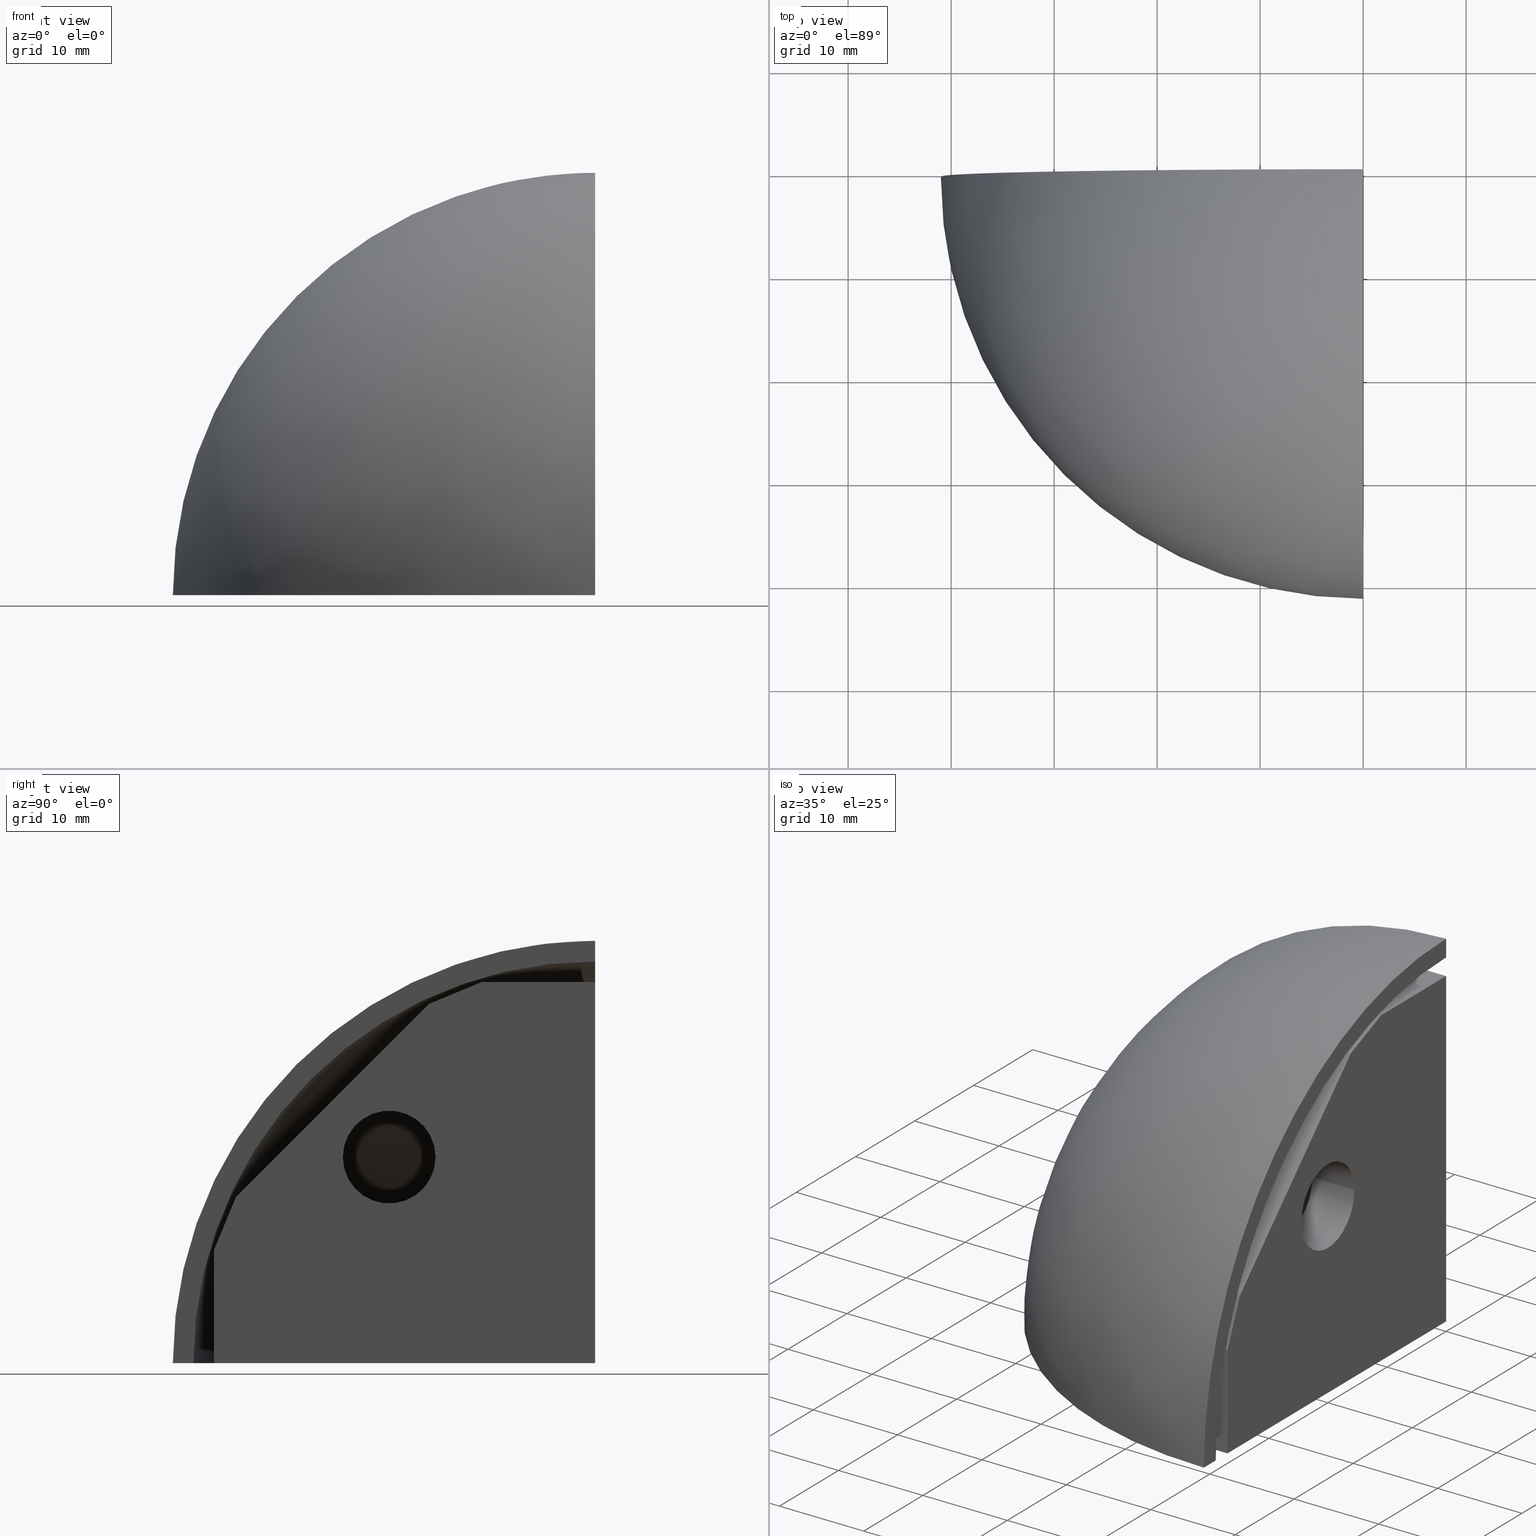
[diagram: canonical four-view strip — front | top / right | iso, engineering-drawing reading convention]
A machine part, canonical four-view strip (front | top / right | iso — engineering-drawing reading convention). The complete STEP part file that produces these views, byte-faithful:
ISO-10303-21;
HEADER;
/****************************************************************
 * Generated by software with PDE/Lib inside                    *
 * PDElib Version v4.4, created Mon 02/23/2004                  *
 * International Technegroup Inc. (www.iti-oh.com)              *
 ****************************************************************/
FILE_DESCRIPTION(('STEP AP203'),'2;1');
FILE_NAME('14.319.00.stp','2011-09-08T18:05:32',(''),(''),'2009.3.110','THINKDESIGN','');
FILE_SCHEMA(('CONFIG_CONTROL_DESIGN'));
ENDSEC;
DATA;
#2=CARTESIAN_POINT('',(-41.0,0.0,0.0));
#3=CARTESIAN_POINT('',(-41.0,-40.999999999999993,0.0));
#4=CARTESIAN_POINT('',(-9.103829E-015,-41.0,3.034610E-015));
#5=CARTESIAN_POINT('',(-41.0,0.0,40.999999999999993));
#6=CARTESIAN_POINT('',(-41.0,-40.999999999999993,40.999999999999993));
#7=CARTESIAN_POINT('',(-1.213844E-014,-41.0,40.999999999999993));
#8=CARTESIAN_POINT('',(-9.103829E-015,0.0,41.0));
#9=CARTESIAN_POINT('',(-9.103829E-015,0.0,41.0));
#10=CARTESIAN_POINT('',(-9.103829E-015,0.0,41.0));
#18=(BOUNDED_SURFACE()B_SPLINE_SURFACE(2,2,((#2,#5,#8),(#3,#6,#9),(#4,#7,#10)),.UNSPECIFIED.,.F.,.F.,.U.)GEOMETRIC_REPRESENTATION_ITEM()QUASI_UNIFORM_SURFACE()RATIONAL_B_SPLINE_SURFACE(((1.0,0.707106781186548,1.0),(0.707106781186548,0.500000000000000,0.707106781186548),(1.0,0.707106781186548,1.0)))REPRESENTATION_ITEM('')SURFACE());
#19=CARTESIAN_POINT('',(-41.0,0.0,0.0));
#20=VERTEX_POINT('',#19);
#21=CARTESIAN_POINT('',(-3.552714E-015,-41.0,3.034610E-015));
#22=VERTEX_POINT('',#21);
#23=CARTESIAN_POINT('',(0.0,0.0,3.034610E-015));
#24=DIRECTION('',(-7.401487E-017,0.0,1.0));
#25=DIRECTION('',(-1.0,0.0,-7.401487E-017));
#26=AXIS2_PLACEMENT_3D('',#23,#24,#25);
#27=CIRCLE('',#26,41.0);
#28=EDGE_CURVE('',#20,#22,#27,.T.);
#29=ORIENTED_EDGE('',*,*,#28,.T.);
#30=CARTESIAN_POINT('',(0.0,0.0,41.0));
#31=VERTEX_POINT('',#30);
#32=CARTESIAN_POINT('',(3.552714E-015,0.0,0.0));
#33=DIRECTION('',(-1.0,6.123234E-017,-7.401487E-017));
#34=DIRECTION('',(-6.123234E-017,-1.0,7.401487E-017));
#35=AXIS2_PLACEMENT_3D('',#32,#33,#34);
#36=CIRCLE('',#35,41.0);
#37=EDGE_CURVE('',#22,#31,#36,.T.);
#38=ORIENTED_EDGE('',*,*,#37,.T.);
#39=CARTESIAN_POINT('',(0.0,0.0,0.0));
#40=DIRECTION('',(0.0,1.0,0.0));
#41=DIRECTION('',(-1.0,0.0,0.0));
#42=AXIS2_PLACEMENT_3D('',#39,#40,#41);
#43=CIRCLE('',#42,41.0);
#44=EDGE_CURVE('',#20,#31,#43,.T.);
#45=ORIENTED_EDGE('',*,*,#44,.F.);
#46=EDGE_LOOP('',(#29,#38,#45));
#47=FACE_OUTER_BOUND('',#46,.T.);
#48=ADVANCED_FACE('',(#47),#18,.T.);
#49=CARTESIAN_POINT('',(-2.388061E-015,0.0,39.0));
#50=CARTESIAN_POINT('',(-2.388061E-015,0.0,39.0));
#51=CARTESIAN_POINT('',(-2.388061E-015,0.0,39.0));
#52=CARTESIAN_POINT('',(-38.999999999999993,0.0,39.0));
#53=CARTESIAN_POINT('',(-38.999999999999993,-38.999999999999986,39.0));
#54=CARTESIAN_POINT('',(-1.154632E-014,-38.999999999999993,39.0));
#55=CARTESIAN_POINT('',(-39.0,0.0,6.271678E-015));
#56=CARTESIAN_POINT('',(-39.0,-38.999999999999993,6.271678E-015));
#57=CARTESIAN_POINT('',(-8.659740E-015,-39.0,9.158258E-015));
#65=(BOUNDED_SURFACE()B_SPLINE_SURFACE(2,2,((#49,#52,#55),(#50,#53,#56),(#51,#54,#57)),.UNSPECIFIED.,.F.,.F.,.U.)GEOMETRIC_REPRESENTATION_ITEM()QUASI_UNIFORM_SURFACE()RATIONAL_B_SPLINE_SURFACE(((1.0,0.707106781186548,1.0),(0.707106781186548,0.500000000000000,0.707106781186548),(1.0,0.707106781186548,1.0)))REPRESENTATION_ITEM('')SURFACE());
#66=CARTESIAN_POINT('',(-3.552714E-015,0.0,39.0));
#67=VERTEX_POINT('',#66);
#68=CARTESIAN_POINT('',(-3.552714E-015,-39.0,2.960595E-015));
#69=VERTEX_POINT('',#68);
#70=CARTESIAN_POINT('',(3.552714E-015,0.0,0.0));
#71=DIRECTION('',(1.0,-6.123234E-017,7.401487E-017));
#72=DIRECTION('',(-6.123234E-017,-1.0,7.401487E-017));
#73=AXIS2_PLACEMENT_3D('',#70,#71,#72);
#74=CIRCLE('',#73,39.0);
#75=EDGE_CURVE('',#67,#69,#74,.T.);
#76=ORIENTED_EDGE('',*,*,#75,.T.);
#77=CARTESIAN_POINT('',(-39.0,0.0,0.0));
#78=VERTEX_POINT('',#77);
#79=CARTESIAN_POINT('',(0.0,0.0,2.960595E-015));
#80=DIRECTION('',(-7.401487E-017,0.0,1.0));
#81=DIRECTION('',(-1.0,0.0,-7.401487E-017));
#82=AXIS2_PLACEMENT_3D('',#79,#80,#81);
#83=CIRCLE('',#82,39.0);
#84=EDGE_CURVE('',#78,#69,#83,.T.);
#85=ORIENTED_EDGE('',*,*,#84,.F.);
#86=CARTESIAN_POINT('',(0.0,0.0,0.0));
#87=DIRECTION('',(0.0,-1.0,0.0));
#88=DIRECTION('',(-1.0,0.0,0.0));
#89=AXIS2_PLACEMENT_3D('',#86,#87,#88);
#90=CIRCLE('',#89,39.0);
#91=EDGE_CURVE('',#67,#78,#90,.T.);
#92=ORIENTED_EDGE('',*,*,#91,.F.);
#93=EDGE_LOOP('',(#76,#85,#92));
#94=FACE_OUTER_BOUND('',#93,.T.);
#95=ADVANCED_FACE('',(#94),#65,.T.);
#96=CARTESIAN_POINT('',(82.0,82.0,9.029814E-015));
#97=DIRECTION('',(0.0,0.0,-1.0));
#98=DIRECTION('',(0.0,-1.0,0.0));
#99=AXIS2_PLACEMENT_3D('',#96,#97,#98);
#100=PLANE('',#99);
#101=ORIENTED_EDGE('',*,*,#84,.T.);
#102=CARTESIAN_POINT('',(-3.430249E-015,-39.0,2.886580E-015));
#103=DIRECTION('',(0.0,-1.0,0.0));
#104=VECTOR('',#103,2.0);
#105=LINE('',#102,#104);
#106=EDGE_CURVE('',#69,#22,#105,.T.);
#107=ORIENTED_EDGE('',*,*,#106,.T.);
#108=ORIENTED_EDGE('',*,*,#28,.F.);
#109=CARTESIAN_POINT('',(-39.0,0.0,0.0));
#110=DIRECTION('',(-1.0,0.0,0.0));
#111=VECTOR('',#110,2.0);
#112=LINE('',#109,#111);
#113=EDGE_CURVE('',#78,#20,#112,.T.);
#114=ORIENTED_EDGE('',*,*,#113,.F.);
#115=EDGE_LOOP('',(#101,#107,#108,#114));
#116=FACE_OUTER_BOUND('',#115,.T.);
#117=ADVANCED_FACE('',(#116),#100,.T.);
#118=CARTESIAN_POINT('',(-45.100000745576331,0.0,45.100000745576331));
#119=DIRECTION('',(0.0,1.0,0.0));
#120=DIRECTION('',(1.0,0.0,0.0));
#121=AXIS2_PLACEMENT_3D('',#118,#119,#120);
#122=PLANE('',#121);
#123=ORIENTED_EDGE('',*,*,#44,.T.);
#124=CARTESIAN_POINT('',(0.0,0.0,41.0));
#125=DIRECTION('',(0.0,0.0,-1.0));
#126=VECTOR('',#125,2.0);
#127=LINE('',#124,#126);
#128=EDGE_CURVE('',#31,#67,#127,.T.);
#129=ORIENTED_EDGE('',*,*,#128,.T.);
#130=ORIENTED_EDGE('',*,*,#91,.T.);
#131=ORIENTED_EDGE('',*,*,#113,.T.);
#132=EDGE_LOOP('',(#123,#129,#130,#131));
#133=FACE_OUTER_BOUND('',#132,.T.);
#134=ADVANCED_FACE('',(#133),#122,.T.);
#135=CARTESIAN_POINT('',(0.0,-45.100000745576338,-4.100000745576341));
#136=DIRECTION('',(-1.0,0.0,0.0));
#137=DIRECTION('',(0.0,0.0,1.0));
#138=AXIS2_PLACEMENT_3D('',#135,#136,#137);
#139=PLANE('',#138);
#140=ORIENTED_EDGE('',*,*,#106,.F.);
#141=ORIENTED_EDGE('',*,*,#75,.F.);
#142=ORIENTED_EDGE('',*,*,#128,.F.);
#143=ORIENTED_EDGE('',*,*,#37,.F.);
#144=EDGE_LOOP('',(#140,#141,#142,#143));
#145=FACE_OUTER_BOUND('',#144,.T.);
#146=ADVANCED_FACE('',(#145),#139,.F.);
#147=CLOSED_SHELL('',(#48,#95,#117,#134,#146));
#148=MANIFOLD_SOLID_BREP('',#147);
#149=CARTESIAN_POINT('',(-20.0,0.0,20.0));
#150=DIRECTION('',(0.0,1.0,0.0));
#151=DIRECTION('',(-1.0,0.0,0.0));
#152=AXIS2_PLACEMENT_3D('',#149,#150,#151);
#153=CYLINDRICAL_SURFACE('',#152,4.499999999999996);
#154=CARTESIAN_POINT('',(-24.499999999999993,0.0,20.0));
#155=VERTEX_POINT('',#154);
#156=CARTESIAN_POINT('',(-24.499999999999993,-5.0,20.0));
#157=VERTEX_POINT('',#156);
#158=CARTESIAN_POINT('',(-24.499999999999993,0.0,20.0));
#159=DIRECTION('',(0.0,-1.0,0.0));
#160=VECTOR('',#159,5.0);
#161=LINE('',#158,#160);
#162=EDGE_CURVE('',#155,#157,#161,.T.);
#163=ORIENTED_EDGE('',*,*,#162,.T.);
#164=CARTESIAN_POINT('',(-15.500000000000004,-5.0,20.0));
#165=VERTEX_POINT('',#164);
#166=CARTESIAN_POINT('',(-20.0,-5.0,20.0));
#167=DIRECTION('',(0.0,1.0,0.0));
#168=DIRECTION('',(-1.0,0.0,0.0));
#169=AXIS2_PLACEMENT_3D('',#166,#167,#168);
#170=CIRCLE('',#169,4.499999999999996);
#171=EDGE_CURVE('',#165,#157,#170,.T.);
#172=ORIENTED_EDGE('',*,*,#171,.F.);
#173=CARTESIAN_POINT('',(-20.0,-5.0,20.0));
#174=DIRECTION('',(0.0,1.0,0.0));
#175=DIRECTION('',(-1.0,0.0,0.0));
#176=AXIS2_PLACEMENT_3D('',#173,#174,#175);
#177=CIRCLE('',#176,4.499999999999996);
#178=EDGE_CURVE('',#157,#165,#177,.T.);
#179=ORIENTED_EDGE('',*,*,#178,.F.);
#180=ORIENTED_EDGE('',*,*,#162,.F.);
#181=CARTESIAN_POINT('',(-15.500000000000004,0.0,20.0));
#182=VERTEX_POINT('',#181);
#183=CARTESIAN_POINT('',(-20.0,0.0,20.0));
#184=DIRECTION('',(0.0,1.0,0.0));
#185=DIRECTION('',(-1.0,0.0,0.0));
#186=AXIS2_PLACEMENT_3D('',#183,#184,#185);
#187=CIRCLE('',#186,4.499999999999996);
#188=EDGE_CURVE('',#155,#182,#187,.T.);
#189=ORIENTED_EDGE('',*,*,#188,.T.);
#190=CARTESIAN_POINT('',(-20.0,0.0,20.0));
#191=DIRECTION('',(0.0,1.0,0.0));
#192=DIRECTION('',(-1.0,0.0,0.0));
#193=AXIS2_PLACEMENT_3D('',#190,#191,#192);
#194=CIRCLE('',#193,4.499999999999996);
#195=EDGE_CURVE('',#182,#155,#194,.T.);
#196=ORIENTED_EDGE('',*,*,#195,.T.);
#197=EDGE_LOOP('',(#163,#172,#179,#180,#189,#196));
#198=FACE_OUTER_BOUND('',#197,.T.);
#199=ADVANCED_FACE('',(#198),#153,.F.);
#200=CARTESIAN_POINT('',(0.0,-20.0,20.0));
#201=DIRECTION('',(1.0,0.0,0.0));
#202=DIRECTION('',(0.0,1.0,0.0));
#203=AXIS2_PLACEMENT_3D('',#200,#201,#202);
#204=CYLINDRICAL_SURFACE('',#203,4.499999999999996);
#205=CARTESIAN_POINT('',(0.0,-15.500000000000004,20.0));
#206=VERTEX_POINT('',#205);
#207=CARTESIAN_POINT('',(-5.0,-15.500000000000004,20.0));
#208=VERTEX_POINT('',#207);
#209=CARTESIAN_POINT('',(0.0,-15.500000000000004,20.0));
#210=DIRECTION('',(-1.0,0.0,0.0));
#211=VECTOR('',#210,5.0);
#212=LINE('',#209,#211);
#213=EDGE_CURVE('',#206,#208,#212,.T.);
#214=ORIENTED_EDGE('',*,*,#213,.T.);
#215=CARTESIAN_POINT('',(-5.0,-24.499999999999996,20.0));
#216=VERTEX_POINT('',#215);
#217=CARTESIAN_POINT('',(-5.0,-20.0,20.0));
#218=DIRECTION('',(1.0,0.0,0.0));
#219=DIRECTION('',(0.0,1.0,0.0));
#220=AXIS2_PLACEMENT_3D('',#217,#218,#219);
#221=CIRCLE('',#220,4.499999999999996);
#222=EDGE_CURVE('',#216,#208,#221,.T.);
#223=ORIENTED_EDGE('',*,*,#222,.F.);
#224=CARTESIAN_POINT('',(-5.0,-20.0,20.0));
#225=DIRECTION('',(1.0,0.0,0.0));
#226=DIRECTION('',(0.0,1.0,0.0));
#227=AXIS2_PLACEMENT_3D('',#224,#225,#226);
#228=CIRCLE('',#227,4.499999999999996);
#229=EDGE_CURVE('',#208,#216,#228,.T.);
#230=ORIENTED_EDGE('',*,*,#229,.F.);
#231=ORIENTED_EDGE('',*,*,#213,.F.);
#232=CARTESIAN_POINT('',(0.0,-24.499999999999996,20.0));
#233=VERTEX_POINT('',#232);
#234=CARTESIAN_POINT('',(0.0,-20.0,20.0));
#235=DIRECTION('',(1.0,0.0,0.0));
#236=DIRECTION('',(0.0,1.0,0.0));
#237=AXIS2_PLACEMENT_3D('',#234,#235,#236);
#238=CIRCLE('',#237,4.499999999999996);
#239=EDGE_CURVE('',#206,#233,#238,.T.);
#240=ORIENTED_EDGE('',*,*,#239,.T.);
#241=CARTESIAN_POINT('',(0.0,-20.0,20.0));
#242=DIRECTION('',(1.0,0.0,0.0));
#243=DIRECTION('',(0.0,1.0,0.0));
#244=AXIS2_PLACEMENT_3D('',#241,#242,#243);
#245=CIRCLE('',#244,4.499999999999996);
#246=EDGE_CURVE('',#233,#206,#245,.T.);
#247=ORIENTED_EDGE('',*,*,#246,.T.);
#248=EDGE_LOOP('',(#214,#223,#230,#231,#240,#247));
#249=FACE_OUTER_BOUND('',#248,.T.);
#250=ADVANCED_FACE('',(#249),#204,.F.);
#251=CARTESIAN_POINT('',(-20.0,-20.0,0.0));
#252=DIRECTION('',(0.0,0.0,-1.0));
#253=DIRECTION('',(1.0,0.0,0.0));
#254=AXIS2_PLACEMENT_3D('',#251,#252,#253);
#255=CYLINDRICAL_SURFACE('',#254,4.499999999999996);
#256=CARTESIAN_POINT('',(-15.500000000000007,-20.0,0.0));
#257=VERTEX_POINT('',#256);
#258=CARTESIAN_POINT('',(-15.500000000000007,-20.0,5.0));
#259=VERTEX_POINT('',#258);
#260=CARTESIAN_POINT('',(-15.500000000000007,-20.0,0.0));
#261=DIRECTION('',(0.0,0.0,1.0));
#262=VECTOR('',#261,5.0);
#263=LINE('',#260,#262);
#264=EDGE_CURVE('',#257,#259,#263,.T.);
#265=ORIENTED_EDGE('',*,*,#264,.T.);
#266=CARTESIAN_POINT('',(-24.499999999999996,-20.0,5.0));
#267=VERTEX_POINT('',#266);
#268=CARTESIAN_POINT('',(-20.0,-20.0,5.0));
#269=DIRECTION('',(0.0,0.0,-1.0));
#270=DIRECTION('',(1.0,0.0,0.0));
#271=AXIS2_PLACEMENT_3D('',#268,#269,#270);
#272=CIRCLE('',#271,4.499999999999996);
#273=EDGE_CURVE('',#267,#259,#272,.T.);
#274=ORIENTED_EDGE('',*,*,#273,.F.);
#275=CARTESIAN_POINT('',(-20.0,-20.0,5.0));
#276=DIRECTION('',(0.0,0.0,-1.0));
#277=DIRECTION('',(1.0,0.0,0.0));
#278=AXIS2_PLACEMENT_3D('',#275,#276,#277);
#279=CIRCLE('',#278,4.499999999999996);
#280=EDGE_CURVE('',#259,#267,#279,.T.);
#281=ORIENTED_EDGE('',*,*,#280,.F.);
#282=ORIENTED_EDGE('',*,*,#264,.F.);
#283=CARTESIAN_POINT('',(-24.499999999999996,-20.0,0.0));
#284=VERTEX_POINT('',#283);
#285=CARTESIAN_POINT('',(-20.0,-20.0,0.0));
#286=DIRECTION('',(0.0,0.0,-1.0));
#287=DIRECTION('',(1.0,0.0,0.0));
#288=AXIS2_PLACEMENT_3D('',#285,#286,#287);
#289=CIRCLE('',#288,4.499999999999996);
#290=EDGE_CURVE('',#257,#284,#289,.T.);
#291=ORIENTED_EDGE('',*,*,#290,.T.);
#292=CARTESIAN_POINT('',(-20.0,-20.0,0.0));
#293=DIRECTION('',(0.0,0.0,-1.0));
#294=DIRECTION('',(1.0,0.0,0.0));
#295=AXIS2_PLACEMENT_3D('',#292,#293,#294);
#296=CIRCLE('',#295,4.499999999999996);
#297=EDGE_CURVE('',#284,#257,#296,.T.);
#298=ORIENTED_EDGE('',*,*,#297,.T.);
#299=EDGE_LOOP('',(#265,#274,#281,#282,#291,#298));
#300=FACE_OUTER_BOUND('',#299,.T.);
#301=ADVANCED_FACE('',(#300),#255,.F.);
#302=CARTESIAN_POINT('',(0.0,-37.0,0.0));
#303=DIRECTION('',(1.0,0.0,0.0));
#304=DIRECTION('',(0.0,1.0,0.0));
#305=AXIS2_PLACEMENT_3D('',#302,#303,#304);
#306=PLANE('',#305);
#307=CARTESIAN_POINT('',(0.0,-37.0,0.0));
#308=VERTEX_POINT('',#307);
#309=CARTESIAN_POINT('',(0.0,0.0,0.0));
#310=VERTEX_POINT('',#309);
#311=CARTESIAN_POINT('',(0.0,-37.0,0.0));
#312=DIRECTION('',(0.0,1.0,0.0));
#313=VECTOR('',#312,37.0);
#314=LINE('',#311,#313);
#315=EDGE_CURVE('',#308,#310,#314,.T.);
#316=ORIENTED_EDGE('',*,*,#315,.T.);
#317=CARTESIAN_POINT('',(0.0,0.0,37.0));
#318=VERTEX_POINT('',#317);
#319=CARTESIAN_POINT('',(0.0,0.0,0.0));
#320=DIRECTION('',(0.0,0.0,1.0));
#321=VECTOR('',#320,37.0);
#322=LINE('',#319,#321);
#323=EDGE_CURVE('',#310,#318,#322,.T.);
#324=ORIENTED_EDGE('',*,*,#323,.T.);
#325=CARTESIAN_POINT('',(0.0,-11.0,37.0));
#326=VERTEX_POINT('',#325);
#327=CARTESIAN_POINT('',(0.0,-11.0,37.0));
#328=DIRECTION('',(0.0,1.0,0.0));
#329=VECTOR('',#328,11.0);
#330=LINE('',#327,#329);
#331=EDGE_CURVE('',#326,#318,#330,.T.);
#332=ORIENTED_EDGE('',*,*,#331,.F.);
#333=CARTESIAN_POINT('',(-3.552714E-015,-16.121320343559642,34.878679656440362));
#334=VERTEX_POINT('',#333);
#335=CARTESIAN_POINT('',(0.0,-16.121320343559642,34.878679656440362));
#336=DIRECTION('',(0.0,0.923879532511287,0.382683432365089));
#337=VECTOR('',#336,5.543277195067718);
#338=LINE('',#335,#337);
#339=EDGE_CURVE('',#334,#326,#338,.T.);
#340=ORIENTED_EDGE('',*,*,#339,.F.);
#341=CARTESIAN_POINT('',(-3.552714E-015,-34.878679656440362,16.121320343559645));
#342=VERTEX_POINT('',#341);
#343=CARTESIAN_POINT('',(0.0,-16.121320343559642,34.878679656440362));
#344=DIRECTION('',(0.0,-0.707106781186547,-0.707106781186548));
#345=VECTOR('',#344,26.526911934581186);
#346=LINE('',#343,#345);
#347=EDGE_CURVE('',#334,#342,#346,.T.);
#348=ORIENTED_EDGE('',*,*,#347,.T.);
#349=CARTESIAN_POINT('',(0.0,-37.0,10.999999999999998));
#350=VERTEX_POINT('',#349);
#351=CARTESIAN_POINT('',(0.0,-34.878679656440355,16.121320343559642));
#352=DIRECTION('',(0.0,-0.382683432365090,-0.923879532511287));
#353=VECTOR('',#352,5.543277195067723);
#354=LINE('',#351,#353);
#355=EDGE_CURVE('',#342,#350,#354,.T.);
#356=ORIENTED_EDGE('',*,*,#355,.T.);
#357=CARTESIAN_POINT('',(0.0,-37.0,0.0));
#358=DIRECTION('',(0.0,0.0,1.0));
#359=VECTOR('',#358,10.999999999999998);
#360=LINE('',#357,#359);
#361=EDGE_CURVE('',#308,#350,#360,.T.);
#362=ORIENTED_EDGE('',*,*,#361,.F.);
#363=EDGE_LOOP('',(#316,#324,#332,#340,#348,#356,#362));
#364=FACE_OUTER_BOUND('',#363,.T.);
#365=ORIENTED_EDGE('',*,*,#246,.F.);
#366=ORIENTED_EDGE('',*,*,#239,.F.);
#367=EDGE_LOOP('',(#365,#366));
#368=FACE_BOUND('',#367,.T.);
#369=ADVANCED_FACE('',(#364,#368),#306,.T.);
#370=CARTESIAN_POINT('',(-5.0,-16.121320343559645,34.878679656440355));
#371=CARTESIAN_POINT('',(-5.0,-14.414213562373096,35.585786437626901));
#372=CARTESIAN_POINT('',(-5.0,-12.707106781186550,36.292893218813454));
#373=CARTESIAN_POINT('',(-5.0,-11.0,37.0));
#374=CARTESIAN_POINT('',(-3.333333333333334,-16.121320343559645,34.878679656440355));
#375=CARTESIAN_POINT('',(-3.333333333333334,-14.414213562373096,35.585786437626901));
#376=CARTESIAN_POINT('',(-3.333333333333334,-12.707106781186550,36.292893218813454));
#377=CARTESIAN_POINT('',(-3.333333333333334,-11.0,37.0));
#378=CARTESIAN_POINT('',(-1.666666666666667,-16.121320343559645,34.878679656440362));
#379=CARTESIAN_POINT('',(-1.666666666666667,-14.414213562373098,35.585786437626908));
#380=CARTESIAN_POINT('',(-1.666666666666667,-12.707106781186548,36.292893218813454));
#381=CARTESIAN_POINT('',(-1.666666666666667,-11.0,37.0));
#382=CARTESIAN_POINT('',(0.0,-16.121320343559645,34.878679656440362));
#383=CARTESIAN_POINT('',(0.0,-14.414213562373098,35.585786437626908));
#384=CARTESIAN_POINT('',(0.0,-12.707106781186548,36.292893218813454));
#385=CARTESIAN_POINT('',(0.0,-11.0,37.0));
#386=B_SPLINE_SURFACE_WITH_KNOTS('',3,3,((#370,#374,#378,#382),(#371,#375,#379,#383),(#372,#376,#380,#384),(#373,#377,#381,#385)),.UNSPECIFIED.,.F.,.F.,.U.,(4,4),(4,4),(0.0,5.543277195067724),(0.0,5.0),.UNSPECIFIED.);
#387=CARTESIAN_POINT('',(-5.0,-16.121320343559645,34.878679656440355));
#388=VERTEX_POINT('',#387);
#389=CARTESIAN_POINT('',(-5.0,-16.121320343559645,34.878679656440355));
#390=CARTESIAN_POINT('',(-4.485416666666666,-16.121320343559645,34.878679656440355));
#391=CARTESIAN_POINT('',(-2.818750000000009,-16.121320343559645,34.878679656440362));
#392=CARTESIAN_POINT('',(-1.152083333333334,-16.121320343559645,34.878679656440355));
#393=CARTESIAN_POINT('',(0.0,-16.121320343559645,34.878679656440355));
#394=B_SPLINE_CURVE_WITH_KNOTS('',3,(#389,#390,#391,#392,#393),.UNSPECIFIED.,.F.,.U.,(4,1,4),(0.0,1.543750000000003,5.0),.UNSPECIFIED.);
#395=EDGE_CURVE('',#388,#334,#394,.T.);
#396=ORIENTED_EDGE('',*,*,#395,.T.);
#397=ORIENTED_EDGE('',*,*,#339,.T.);
#398=CARTESIAN_POINT('',(-5.0,-11.0,37.0));
#399=VERTEX_POINT('',#398);
#400=CARTESIAN_POINT('',(-5.0,-11.0,37.0));
#401=DIRECTION('',(1.0,0.0,0.0));
#402=VECTOR('',#401,5.0);
#403=LINE('',#400,#402);
#404=EDGE_CURVE('',#399,#326,#403,.T.);
#405=ORIENTED_EDGE('',*,*,#404,.F.);
#406=CARTESIAN_POINT('',(-5.0,-16.121320343559642,34.878679656440355));
#407=DIRECTION('',(0.0,0.923879532511287,0.382683432365090));
#408=VECTOR('',#407,5.543277195067721);
#409=LINE('',#406,#408);
#410=EDGE_CURVE('',#388,#399,#409,.T.);
#411=ORIENTED_EDGE('',*,*,#410,.F.);
#412=EDGE_LOOP('',(#396,#397,#405,#411));
#413=FACE_OUTER_BOUND('',#412,.T.);
#414=ADVANCED_FACE('',(#413),#386,.F.);
#415=CARTESIAN_POINT('',(-5.0,-37.0,37.0));
#416=DIRECTION('',(-1.0,0.0,0.0));
#417=DIRECTION('',(0.0,1.0,0.0));
#418=AXIS2_PLACEMENT_3D('',#415,#416,#417);
#419=PLANE('',#418);
#420=CARTESIAN_POINT('',(-5.0,-5.0,37.0));
#421=VERTEX_POINT('',#420);
#422=CARTESIAN_POINT('',(-5.0,-5.0,5.0));
#423=VERTEX_POINT('',#422);
#424=CARTESIAN_POINT('',(-5.0,-5.0,37.0));
#425=DIRECTION('',(0.0,0.0,-1.0));
#426=VECTOR('',#425,32.0);
#427=LINE('',#424,#426);
#428=EDGE_CURVE('',#421,#423,#427,.T.);
#429=ORIENTED_EDGE('',*,*,#428,.T.);
#430=CARTESIAN_POINT('',(-5.0,-37.0,5.0));
#431=VERTEX_POINT('',#430);
#432=CARTESIAN_POINT('',(-5.0,-37.0,5.0));
#433=DIRECTION('',(0.0,1.0,0.0));
#434=VECTOR('',#433,32.0);
#435=LINE('',#432,#434);
#436=EDGE_CURVE('',#431,#423,#435,.T.);
#437=ORIENTED_EDGE('',*,*,#436,.F.);
#438=CARTESIAN_POINT('',(-5.0,-37.0,11.0));
#439=VERTEX_POINT('',#438);
#440=CARTESIAN_POINT('',(-5.0,-37.0,11.0));
#441=DIRECTION('',(0.0,0.0,-1.0));
#442=VECTOR('',#441,6.0);
#443=LINE('',#440,#442);
#444=EDGE_CURVE('',#439,#431,#443,.T.);
#445=ORIENTED_EDGE('',*,*,#444,.F.);
#446=CARTESIAN_POINT('',(-5.0,-34.878679656440355,16.121320343559642));
#447=VERTEX_POINT('',#446);
#448=CARTESIAN_POINT('',(-5.0,-34.878679656440355,16.121320343559642));
#449=DIRECTION('',(0.0,-0.382683432365090,-0.923879532511287));
#450=VECTOR('',#449,5.543277195067721);
#451=LINE('',#448,#450);
#452=EDGE_CURVE('',#447,#439,#451,.T.);
#453=ORIENTED_EDGE('',*,*,#452,.F.);
#454=CARTESIAN_POINT('',(-5.0,-16.121320343559645,34.878679656440355));
#455=DIRECTION('',(0.0,-0.707106781186547,-0.707106781186547));
#456=VECTOR('',#455,26.526911934581189);
#457=LINE('',#454,#456);
#458=EDGE_CURVE('',#388,#447,#457,.T.);
#459=ORIENTED_EDGE('',*,*,#458,.F.);
#460=ORIENTED_EDGE('',*,*,#410,.T.);
#461=CARTESIAN_POINT('',(-5.0,-11.0,37.0));
#462=DIRECTION('',(0.0,1.0,0.0));
#463=VECTOR('',#462,6.0);
#464=LINE('',#461,#463);
#465=EDGE_CURVE('',#399,#421,#464,.T.);
#466=ORIENTED_EDGE('',*,*,#465,.T.);
#467=EDGE_LOOP('',(#429,#437,#445,#453,#459,#460,#466));
#468=FACE_OUTER_BOUND('',#467,.T.);
#469=ORIENTED_EDGE('',*,*,#229,.T.);
#470=ORIENTED_EDGE('',*,*,#222,.T.);
#471=EDGE_LOOP('',(#469,#470));
#472=FACE_BOUND('',#471,.T.);
#473=ADVANCED_FACE('',(#468,#472),#419,.T.);
#474=CARTESIAN_POINT('',(-5.0,-34.878679656440355,16.121320343559642));
#475=CARTESIAN_POINT('',(-5.0,-35.585786437626901,14.414213562373094));
#476=CARTESIAN_POINT('',(-5.0,-36.292893218813454,12.707106781186548));
#477=CARTESIAN_POINT('',(-5.0,-37.0,11.0));
#478=CARTESIAN_POINT('',(-3.333333333333334,-34.878679656440355,16.121320343559642));
#479=CARTESIAN_POINT('',(-3.333333333333334,-35.585786437626901,14.414213562373094));
#480=CARTESIAN_POINT('',(-3.333333333333334,-36.292893218813454,12.707106781186548));
#481=CARTESIAN_POINT('',(-3.333333333333334,-37.0,11.0));
#482=CARTESIAN_POINT('',(-1.666666666666667,-34.878679656440362,16.121320343559645));
#483=CARTESIAN_POINT('',(-1.666666666666667,-35.585786437626908,14.414213562373096));
#484=CARTESIAN_POINT('',(-1.666666666666667,-36.292893218813454,12.707106781186546));
#485=CARTESIAN_POINT('',(-1.666666666666667,-37.0,10.999999999999998));
#486=CARTESIAN_POINT('',(0.0,-34.878679656440362,16.121320343559645));
#487=CARTESIAN_POINT('',(0.0,-35.585786437626908,14.414213562373096));
#488=CARTESIAN_POINT('',(0.0,-36.292893218813454,12.707106781186546));
#489=CARTESIAN_POINT('',(0.0,-37.0,10.999999999999998));
#490=B_SPLINE_SURFACE_WITH_KNOTS('',3,3,((#474,#478,#482,#486),(#475,#479,#483,#487),(#476,#480,#484,#488),(#477,#481,#485,#489)),.UNSPECIFIED.,.F.,.F.,.U.,(4,4),(4,4),(0.0,5.543277195067722),(0.0,5.0),.UNSPECIFIED.);
#491=ORIENTED_EDGE('',*,*,#452,.T.);
#492=CARTESIAN_POINT('',(-5.0,-37.0,11.0));
#493=DIRECTION('',(1.0,0.0,0.0));
#494=VECTOR('',#493,5.0);
#495=LINE('',#492,#494);
#496=EDGE_CURVE('',#439,#350,#495,.T.);
#497=ORIENTED_EDGE('',*,*,#496,.T.);
#498=ORIENTED_EDGE('',*,*,#355,.F.);
#499=CARTESIAN_POINT('',(-5.0,-34.878679656440355,16.121320343559642));
#500=CARTESIAN_POINT('',(-4.485416666666666,-34.878679656440355,16.121320343559642));
#501=CARTESIAN_POINT('',(-2.818750000000009,-34.878679656440362,16.121320343559645));
#502=CARTESIAN_POINT('',(-1.152083333333334,-34.878679656440355,16.121320343559642));
#503=CARTESIAN_POINT('',(0.0,-34.878679656440355,16.121320343559642));
#504=B_SPLINE_CURVE_WITH_KNOTS('',3,(#499,#500,#501,#502,#503),.UNSPECIFIED.,.F.,.U.,(4,1,4),(0.0,1.543750000000003,5.0),.UNSPECIFIED.);
#505=EDGE_CURVE('',#447,#342,#504,.T.);
#506=ORIENTED_EDGE('',*,*,#505,.F.);
#507=EDGE_LOOP('',(#491,#497,#498,#506));
#508=FACE_OUTER_BOUND('',#507,.T.);
#509=ADVANCED_FACE('',(#508),#490,.T.);
#510=CARTESIAN_POINT('',(-40.200000745516391,-40.200000745516377,5.0));
#511=DIRECTION('',(0.0,0.0,1.0));
#512=DIRECTION('',(1.0,0.0,0.0));
#513=AXIS2_PLACEMENT_3D('',#510,#511,#512);
#514=PLANE('',#513);
#515=ORIENTED_EDGE('',*,*,#436,.T.);
#516=CARTESIAN_POINT('',(-37.000000000000007,-5.0,5.0));
#517=VERTEX_POINT('',#516);
#518=CARTESIAN_POINT('',(-5.0,-5.0,5.0));
#519=DIRECTION('',(-1.0,0.0,0.0));
#520=VECTOR('',#519,32.000000000000007);
#521=LINE('',#518,#520);
#522=EDGE_CURVE('',#423,#517,#521,.T.);
#523=ORIENTED_EDGE('',*,*,#522,.T.);
#524=CARTESIAN_POINT('',(-37.000000000000007,-11.000000000000002,5.000000000000004));
#525=VERTEX_POINT('',#524);
#526=CARTESIAN_POINT('',(-37.000000000000007,-5.0,5.0));
#527=DIRECTION('',(0.0,-1.0,0.0));
#528=VECTOR('',#527,6.000000000000002);
#529=LINE('',#526,#528);
#530=EDGE_CURVE('',#517,#525,#529,.T.);
#531=ORIENTED_EDGE('',*,*,#530,.T.);
#532=CARTESIAN_POINT('',(-34.878679656440355,-16.121320343559645,4.999999999999998));
#533=VERTEX_POINT('',#532);
#534=CARTESIAN_POINT('',(-34.878679656440362,-16.121320343559649,5.0));
#535=DIRECTION('',(-0.382683432365090,0.923879532511287,0.0));
#536=VECTOR('',#535,5.543277195067724);
#537=LINE('',#534,#536);
#538=EDGE_CURVE('',#533,#525,#537,.T.);
#539=ORIENTED_EDGE('',*,*,#538,.F.);
#540=CARTESIAN_POINT('',(-16.121320343559638,-34.878679656440355,4.999999999999998));
#541=VERTEX_POINT('',#540);
#542=CARTESIAN_POINT('',(-34.878679656440362,-16.121320343559649,5.0));
#543=DIRECTION('',(0.707106781186548,-0.707106781186547,0.0));
#544=VECTOR('',#543,26.526911934581182);
#545=LINE('',#542,#544);
#546=EDGE_CURVE('',#533,#541,#545,.T.);
#547=ORIENTED_EDGE('',*,*,#546,.T.);
#548=CARTESIAN_POINT('',(-11.0,-37.0,5.0));
#549=VERTEX_POINT('',#548);
#550=CARTESIAN_POINT('',(-16.121320343559638,-34.878679656440362,5.0));
#551=DIRECTION('',(0.923879532511287,-0.382683432365089,0.0));
#552=VECTOR('',#551,5.543277195067715);
#553=LINE('',#550,#552);
#554=EDGE_CURVE('',#541,#549,#553,.T.);
#555=ORIENTED_EDGE('',*,*,#554,.T.);
#556=CARTESIAN_POINT('',(-11.0,-37.0,5.0));
#557=DIRECTION('',(1.0,0.0,0.0));
#558=VECTOR('',#557,6.0);
#559=LINE('',#556,#558);
#560=EDGE_CURVE('',#549,#431,#559,.T.);
#561=ORIENTED_EDGE('',*,*,#560,.T.);
#562=EDGE_LOOP('',(#515,#523,#531,#539,#547,#555,#561));
#563=FACE_OUTER_BOUND('',#562,.T.);
#564=ORIENTED_EDGE('',*,*,#280,.T.);
#565=ORIENTED_EDGE('',*,*,#273,.T.);
#566=EDGE_LOOP('',(#564,#565));
#567=FACE_BOUND('',#566,.T.);
#568=ADVANCED_FACE('',(#563,#567),#514,.T.);
#569=CARTESIAN_POINT('',(-16.121320343559638,-34.878679656440355,-3.356221E-016));
#570=CARTESIAN_POINT('',(-14.414213562373092,-35.585786437626901,-2.237481E-016));
#571=CARTESIAN_POINT('',(-12.707106781186546,-36.292893218813454,-1.118740E-016));
#572=CARTESIAN_POINT('',(-11.0,-37.0,0.0));
#573=CARTESIAN_POINT('',(-16.121320343559638,-34.878679656440355,1.666666666666666));
#574=CARTESIAN_POINT('',(-14.414213562373092,-35.585786437626901,1.666666666666666));
#575=CARTESIAN_POINT('',(-12.707106781186546,-36.292893218813454,1.666666666666666));
#576=CARTESIAN_POINT('',(-11.0,-37.0,1.666666666666667));
#577=CARTESIAN_POINT('',(-16.121320343559642,-34.878679656440355,3.333333333333332));
#578=CARTESIAN_POINT('',(-14.414213562373094,-35.585786437626901,3.333333333333332));
#579=CARTESIAN_POINT('',(-12.707106781186548,-36.292893218813454,3.333333333333333));
#580=CARTESIAN_POINT('',(-11.0,-37.0,3.333333333333333));
#581=CARTESIAN_POINT('',(-16.121320343559642,-34.878679656440355,4.999999999999998));
#582=CARTESIAN_POINT('',(-14.414213562373094,-35.585786437626901,4.999999999999999));
#583=CARTESIAN_POINT('',(-12.707106781186548,-36.292893218813454,4.999999999999999));
#584=CARTESIAN_POINT('',(-11.0,-37.0,5.0));
#585=B_SPLINE_SURFACE_WITH_KNOTS('',3,3,((#569,#573,#577,#581),(#570,#574,#578,#582),(#571,#575,#579,#583),(#572,#576,#580,#584)),.UNSPECIFIED.,.F.,.F.,.U.,(4,4),(4,4),(0.0,5.543277195067719),(0.0,4.999999999999999),.UNSPECIFIED.);
#586=CARTESIAN_POINT('',(-16.121320343559638,-34.878679656440355,-3.356221E-016));
#587=VERTEX_POINT('',#586);
#588=CARTESIAN_POINT('',(-11.0,-37.0,0.0));
#589=VERTEX_POINT('',#588);
#590=CARTESIAN_POINT('',(-16.121320343559638,-34.878679656440355,0.0));
#591=DIRECTION('',(0.923879532511287,-0.382683432365091,0.0));
#592=VECTOR('',#591,5.543277195067717);
#593=LINE('',#590,#592);
#594=EDGE_CURVE('',#587,#589,#593,.T.);
#595=ORIENTED_EDGE('',*,*,#594,.T.);
#596=CARTESIAN_POINT('',(-11.0,-37.0,0.0));
#597=DIRECTION('',(0.0,0.0,1.0));
#598=VECTOR('',#597,5.0);
#599=LINE('',#596,#598);
#600=EDGE_CURVE('',#589,#549,#599,.T.);
#601=ORIENTED_EDGE('',*,*,#600,.T.);
#602=ORIENTED_EDGE('',*,*,#554,.F.);
#603=CARTESIAN_POINT('',(-16.121320343559638,-34.878679656440355,-3.356221E-016));
#604=CARTESIAN_POINT('',(-16.121320343559638,-34.878679656440355,0.514583333333332));
#605=CARTESIAN_POINT('',(-16.121320343559645,-34.878679656440362,2.181250000000007));
#606=CARTESIAN_POINT('',(-16.121320343559645,-34.878679656440362,3.847916666666665));
#607=CARTESIAN_POINT('',(-16.121320343559645,-34.878679656440362,4.999999999999999));
#608=B_SPLINE_CURVE_WITH_KNOTS('',3,(#603,#604,#605,#606,#607),.UNSPECIFIED.,.F.,.U.,(4,1,4),(0.0,1.543749999999997,5.000000000000001),.UNSPECIFIED.);
#609=EDGE_CURVE('',#587,#541,#608,.T.);
#610=ORIENTED_EDGE('',*,*,#609,.F.);
#611=EDGE_LOOP('',(#595,#601,#602,#610));
#612=FACE_OUTER_BOUND('',#611,.T.);
#613=ADVANCED_FACE('',(#612),#585,.T.);
#614=CARTESIAN_POINT('',(-40.700000745611902,-40.700000675221041,0.0));
#615=DIRECTION('',(0.0,0.0,1.0));
#616=DIRECTION('',(1.0,0.0,0.0));
#617=AXIS2_PLACEMENT_3D('',#614,#615,#616);
#618=PLANE('',#617);
#619=CARTESIAN_POINT('',(-11.0,-37.0,0.0));
#620=DIRECTION('',(1.0,0.0,0.0));
#621=VECTOR('',#620,11.0);
#622=LINE('',#619,#621);
#623=EDGE_CURVE('',#589,#308,#622,.T.);
#624=ORIENTED_EDGE('',*,*,#623,.F.);
#625=ORIENTED_EDGE('',*,*,#594,.F.);
#626=CARTESIAN_POINT('',(-34.878679656440369,-16.121320343559638,-3.303295E-015));
#627=VERTEX_POINT('',#626);
#628=CARTESIAN_POINT('',(-34.878679656440369,-16.121320343559638,0.0));
#629=DIRECTION('',(0.707106781186548,-0.707106781186547,0.0));
#630=VECTOR('',#629,26.526911934581197);
#631=LINE('',#628,#630);
#632=EDGE_CURVE('',#627,#587,#631,.T.);
#633=ORIENTED_EDGE('',*,*,#632,.F.);
#634=CARTESIAN_POINT('',(-37.000000000000007,-10.999999999999998,0.0));
#635=VERTEX_POINT('',#634);
#636=CARTESIAN_POINT('',(-34.878679656440369,-16.121320343559638,0.0));
#637=DIRECTION('',(-0.382683432365089,0.923879532511287,0.0));
#638=VECTOR('',#637,5.543277195067715);
#639=LINE('',#636,#638);
#640=EDGE_CURVE('',#627,#635,#639,.T.);
#641=ORIENTED_EDGE('',*,*,#640,.T.);
#642=CARTESIAN_POINT('',(-37.000000000000007,0.0,0.0));
#643=VERTEX_POINT('',#642);
#644=CARTESIAN_POINT('',(-37.000000000000007,0.0,0.0));
#645=DIRECTION('',(0.0,-1.0,0.0));
#646=VECTOR('',#645,10.999999999999998);
#647=LINE('',#644,#646);
#648=EDGE_CURVE('',#643,#635,#647,.T.);
#649=ORIENTED_EDGE('',*,*,#648,.F.);
#650=CARTESIAN_POINT('',(0.0,0.0,0.0));
#651=DIRECTION('',(-1.0,0.0,0.0));
#652=VECTOR('',#651,37.000000000000007);
#653=LINE('',#650,#652);
#654=EDGE_CURVE('',#310,#643,#653,.T.);
#655=ORIENTED_EDGE('',*,*,#654,.F.);
#656=ORIENTED_EDGE('',*,*,#315,.F.);
#657=EDGE_LOOP('',(#624,#625,#633,#641,#649,#655,#656));
#658=FACE_OUTER_BOUND('',#657,.T.);
#659=ORIENTED_EDGE('',*,*,#297,.F.);
#660=ORIENTED_EDGE('',*,*,#290,.F.);
#661=EDGE_LOOP('',(#659,#660));
#662=FACE_BOUND('',#661,.T.);
#663=ADVANCED_FACE('',(#658,#662),#618,.F.);
#664=CARTESIAN_POINT('',(-34.878679656440369,-16.121320343559638,-3.303295E-015));
#665=CARTESIAN_POINT('',(-35.585786437626915,-14.414213562373092,-2.202197E-015));
#666=CARTESIAN_POINT('',(-36.292893218813461,-12.707106781186544,-1.101098E-015));
#667=CARTESIAN_POINT('',(-37.000000000000007,-10.999999999999998,0.0));
#668=CARTESIAN_POINT('',(-34.878679656440362,-16.121320343559642,1.666666666666664));
#669=CARTESIAN_POINT('',(-35.585786437626915,-14.414213562373094,1.666666666666665));
#670=CARTESIAN_POINT('',(-36.292893218813461,-12.707106781186546,1.666666666666666));
#671=CARTESIAN_POINT('',(-37.000000000000007,-11.0,1.666666666666668));
#672=CARTESIAN_POINT('',(-34.878679656440362,-16.121320343559642,3.333333333333331));
#673=CARTESIAN_POINT('',(-35.585786437626908,-14.414213562373096,3.333333333333332));
#674=CARTESIAN_POINT('',(-36.292893218813454,-12.707106781186548,3.333333333333334));
#675=CARTESIAN_POINT('',(-37.000000000000007,-11.0,3.333333333333336));
#676=CARTESIAN_POINT('',(-34.878679656440355,-16.121320343559645,4.999999999999998));
#677=CARTESIAN_POINT('',(-35.585786437626908,-14.414213562373098,5.0));
#678=CARTESIAN_POINT('',(-36.292893218813454,-12.707106781186550,5.000000000000002));
#679=CARTESIAN_POINT('',(-37.000000000000007,-11.000000000000002,5.000000000000004));
#680=B_SPLINE_SURFACE_WITH_KNOTS('',3,3,((#664,#668,#672,#676),(#665,#669,#673,#677),(#666,#670,#674,#678),(#667,#671,#675,#679)),.UNSPECIFIED.,.F.,.F.,.U.,(4,4),(4,4),(0.0,5.543277195067721),(0.0,5.000000000000003),.UNSPECIFIED.);
#681=CARTESIAN_POINT('',(-34.878679656440369,-16.121320343559638,-3.303295E-015));
#682=CARTESIAN_POINT('',(-34.878679656440369,-16.121320343559638,0.514583333333330));
#683=CARTESIAN_POINT('',(-34.878679656440404,-16.121320343559638,2.181250000000000));
#684=CARTESIAN_POINT('',(-34.878679656440362,-16.121320343559645,3.847916666666666));
#685=CARTESIAN_POINT('',(-34.878679656440362,-16.121320343559645,4.999999999999999));
#686=B_SPLINE_CURVE_WITH_KNOTS('',3,(#681,#682,#683,#684,#685),.UNSPECIFIED.,.F.,.U.,(4,1,4),(0.0,1.543750000000001,5.000000000000003),.UNSPECIFIED.);
#687=EDGE_CURVE('',#627,#533,#686,.T.);
#688=ORIENTED_EDGE('',*,*,#687,.T.);
#689=ORIENTED_EDGE('',*,*,#538,.T.);
#690=CARTESIAN_POINT('',(-37.000000000000007,-10.999999999999998,0.0));
#691=DIRECTION('',(0.0,0.0,1.0));
#692=VECTOR('',#691,5.000000000000004);
#693=LINE('',#690,#692);
#694=EDGE_CURVE('',#635,#525,#693,.T.);
#695=ORIENTED_EDGE('',*,*,#694,.F.);
#696=ORIENTED_EDGE('',*,*,#640,.F.);
#697=EDGE_LOOP('',(#688,#689,#695,#696));
#698=FACE_OUTER_BOUND('',#697,.T.);
#699=ADVANCED_FACE('',(#698),#680,.F.);
#700=CARTESIAN_POINT('',(-5.0,-5.0,37.0));
#701=DIRECTION('',(0.0,-1.0,0.0));
#702=DIRECTION('',(-1.0,0.0,0.0));
#703=AXIS2_PLACEMENT_3D('',#700,#701,#702);
#704=PLANE('',#703);
#705=ORIENTED_EDGE('',*,*,#522,.F.);
#706=ORIENTED_EDGE('',*,*,#428,.F.);
#707=CARTESIAN_POINT('',(-11.000000000000007,-5.0,37.0));
#708=VERTEX_POINT('',#707);
#709=CARTESIAN_POINT('',(-5.0,-5.0,37.0));
#710=DIRECTION('',(-1.0,0.0,0.0));
#711=VECTOR('',#710,6.000000000000007);
#712=LINE('',#709,#711);
#713=EDGE_CURVE('',#421,#708,#712,.T.);
#714=ORIENTED_EDGE('',*,*,#713,.T.);
#715=CARTESIAN_POINT('',(-16.121320343559653,-5.0,34.878679656440355));
#716=VERTEX_POINT('',#715);
#717=CARTESIAN_POINT('',(-11.000000000000007,-5.0,37.0));
#718=DIRECTION('',(-0.923879532511287,0.0,-0.382683432365090));
#719=VECTOR('',#718,5.543277195067724);
#720=LINE('',#717,#719);
#721=EDGE_CURVE('',#708,#716,#720,.T.);
#722=ORIENTED_EDGE('',*,*,#721,.T.);
#723=CARTESIAN_POINT('',(-34.878679656440369,-5.000000000000007,16.121320343559638));
#724=VERTEX_POINT('',#723);
#725=CARTESIAN_POINT('',(-16.121320343559653,-5.0,34.878679656440355));
#726=DIRECTION('',(-0.707106781186547,0.0,-0.707106781186548));
#727=VECTOR('',#726,26.526911934581189);
#728=LINE('',#725,#727);
#729=EDGE_CURVE('',#716,#724,#728,.T.);
#730=ORIENTED_EDGE('',*,*,#729,.T.);
#731=CARTESIAN_POINT('',(-37.000000000000007,-5.000000000000007,11.0));
#732=VERTEX_POINT('',#731);
#733=CARTESIAN_POINT('',(-34.878679656440369,-5.0,16.121320343559638));
#734=DIRECTION('',(-0.382683432365089,0.0,-0.923879532511287));
#735=VECTOR('',#734,5.543277195067715);
#736=LINE('',#733,#735);
#737=EDGE_CURVE('',#724,#732,#736,.T.);
#738=ORIENTED_EDGE('',*,*,#737,.T.);
#739=CARTESIAN_POINT('',(-37.000000000000007,-5.0,11.0));
#740=DIRECTION('',(0.0,0.0,-1.0));
#741=VECTOR('',#740,6.0);
#742=LINE('',#739,#741);
#743=EDGE_CURVE('',#732,#517,#742,.T.);
#744=ORIENTED_EDGE('',*,*,#743,.T.);
#745=EDGE_LOOP('',(#705,#706,#714,#722,#730,#738,#744));
#746=FACE_OUTER_BOUND('',#745,.T.);
#747=ORIENTED_EDGE('',*,*,#178,.T.);
#748=ORIENTED_EDGE('',*,*,#171,.T.);
#749=EDGE_LOOP('',(#747,#748));
#750=FACE_BOUND('',#749,.T.);
#751=ADVANCED_FACE('',(#746,#750),#704,.T.);
#752=CARTESIAN_POINT('',(-34.878679656440362,0.0,16.121320343559642));
#753=CARTESIAN_POINT('',(-35.585786437626908,0.0,14.414213562373094));
#754=CARTESIAN_POINT('',(-36.292893218813461,0.0,12.707106781186548));
#755=CARTESIAN_POINT('',(-37.000000000000007,0.0,11.0));
#756=CARTESIAN_POINT('',(-34.878679656440362,-1.666666666666668,16.121320343559642));
#757=CARTESIAN_POINT('',(-35.585786437626908,-1.666666666666669,14.414213562373094));
#758=CARTESIAN_POINT('',(-36.292893218813461,-1.666666666666669,12.707106781186548));
#759=CARTESIAN_POINT('',(-37.000000000000007,-1.666666666666669,11.0));
#760=CARTESIAN_POINT('',(-34.878679656440362,-3.333333333333337,16.121320343559638));
#761=CARTESIAN_POINT('',(-35.585786437626908,-3.333333333333338,14.414213562373092));
#762=CARTESIAN_POINT('',(-36.292893218813461,-3.333333333333338,12.707106781186546));
#763=CARTESIAN_POINT('',(-37.000000000000007,-3.333333333333338,11.0));
#764=CARTESIAN_POINT('',(-34.878679656440362,-5.000000000000005,16.121320343559638));
#765=CARTESIAN_POINT('',(-35.585786437626908,-5.000000000000006,14.414213562373092));
#766=CARTESIAN_POINT('',(-36.292893218813461,-5.000000000000006,12.707106781186546));
#767=CARTESIAN_POINT('',(-37.000000000000007,-5.000000000000007,11.0));
#768=B_SPLINE_SURFACE_WITH_KNOTS('',3,3,((#752,#756,#760,#764),(#753,#757,#761,#765),(#754,#758,#762,#766),(#755,#759,#763,#767)),.UNSPECIFIED.,.F.,.F.,.U.,(4,4),(4,4),(0.0,5.543277195067719),(0.0,5.000000000000006),.UNSPECIFIED.);
#769=CARTESIAN_POINT('',(-34.878679656440362,0.0,16.121320343559642));
#770=VERTEX_POINT('',#769);
#771=CARTESIAN_POINT('',(-37.000000000000007,0.0,11.0));
#772=VERTEX_POINT('',#771);
#773=CARTESIAN_POINT('',(-34.878679656440362,0.0,16.121320343559645));
#774=DIRECTION('',(-0.382683432365090,0.0,-0.923879532511287));
#775=VECTOR('',#774,5.543277195067724);
#776=LINE('',#773,#775);
#777=EDGE_CURVE('',#770,#772,#776,.T.);
#778=ORIENTED_EDGE('',*,*,#777,.T.);
#779=CARTESIAN_POINT('',(-37.000000000000007,0.0,11.0));
#780=DIRECTION('',(0.0,-1.0,0.0));
#781=VECTOR('',#780,5.000000000000007);
#782=LINE('',#779,#781);
#783=EDGE_CURVE('',#772,#732,#782,.T.);
#784=ORIENTED_EDGE('',*,*,#783,.T.);
#785=ORIENTED_EDGE('',*,*,#737,.F.);
#786=CARTESIAN_POINT('',(-34.878679656440362,0.0,16.121320343559642));
#787=CARTESIAN_POINT('',(-34.878679656440362,-0.514583333333334,16.121320343559642));
#788=CARTESIAN_POINT('',(-34.878679656440362,-2.181250000000006,16.121320343559645));
#789=CARTESIAN_POINT('',(-34.878679656440369,-3.847916666666670,16.121320343559638));
#790=CARTESIAN_POINT('',(-34.878679656440369,-5.000000000000005,16.121320343559638));
#791=B_SPLINE_CURVE_WITH_KNOTS('',3,(#786,#787,#788,#789,#790),.UNSPECIFIED.,.F.,.U.,(4,1,4),(0.0,1.543750000000003,5.000000000000005),.UNSPECIFIED.);
#792=EDGE_CURVE('',#770,#724,#791,.T.);
#793=ORIENTED_EDGE('',*,*,#792,.F.);
#794=EDGE_LOOP('',(#778,#784,#785,#793));
#795=FACE_OUTER_BOUND('',#794,.T.);
#796=ADVANCED_FACE('',(#795),#768,.T.);
#797=CARTESIAN_POINT('',(0.0,0.0,0.0));
#798=DIRECTION('',(0.0,1.0,0.0));
#799=DIRECTION('',(-1.0,0.0,0.0));
#800=AXIS2_PLACEMENT_3D('',#797,#798,#799);
#801=PLANE('',#800);
#802=ORIENTED_EDGE('',*,*,#654,.T.);
#803=CARTESIAN_POINT('',(-37.000000000000007,0.0,0.0));
#804=DIRECTION('',(0.0,0.0,1.0));
#805=VECTOR('',#804,11.0);
#806=LINE('',#803,#805);
#807=EDGE_CURVE('',#643,#772,#806,.T.);
#808=ORIENTED_EDGE('',*,*,#807,.T.);
#809=ORIENTED_EDGE('',*,*,#777,.F.);
#810=CARTESIAN_POINT('',(-16.121320343559653,7.105427E-015,34.878679656440355));
#811=VERTEX_POINT('',#810);
#812=CARTESIAN_POINT('',(-16.121320343559653,0.0,34.878679656440355));
#813=DIRECTION('',(-0.707106781186548,0.0,-0.707106781186547));
#814=VECTOR('',#813,26.526911934581186);
#815=LINE('',#812,#814);
#816=EDGE_CURVE('',#811,#770,#815,.T.);
#817=ORIENTED_EDGE('',*,*,#816,.F.);
#818=CARTESIAN_POINT('',(-11.000000000000007,7.105427E-015,37.0));
#819=VERTEX_POINT('',#818);
#820=CARTESIAN_POINT('',(-11.000000000000007,0.0,37.0));
#821=DIRECTION('',(-0.923879532511287,0.0,-0.382683432365090));
#822=VECTOR('',#821,5.543277195067724);
#823=LINE('',#820,#822);
#824=EDGE_CURVE('',#819,#811,#823,.T.);
#825=ORIENTED_EDGE('',*,*,#824,.F.);
#826=CARTESIAN_POINT('',(0.0,0.0,37.0));
#827=DIRECTION('',(-1.0,0.0,0.0));
#828=VECTOR('',#827,11.000000000000007);
#829=LINE('',#826,#828);
#830=EDGE_CURVE('',#318,#819,#829,.T.);
#831=ORIENTED_EDGE('',*,*,#830,.F.);
#832=ORIENTED_EDGE('',*,*,#323,.F.);
#833=EDGE_LOOP('',(#802,#808,#809,#817,#825,#831,#832));
#834=FACE_OUTER_BOUND('',#833,.T.);
#835=ORIENTED_EDGE('',*,*,#195,.F.);
#836=ORIENTED_EDGE('',*,*,#188,.F.);
#837=EDGE_LOOP('',(#835,#836));
#838=FACE_BOUND('',#837,.T.);
#839=ADVANCED_FACE('',(#834,#838),#801,.T.);
#840=CARTESIAN_POINT('',(-11.000000000000007,7.105427E-015,37.0));
#841=CARTESIAN_POINT('',(-12.707106781186555,7.105427E-015,36.292893218813454));
#842=CARTESIAN_POINT('',(-14.414213562373105,7.105427E-015,35.585786437626901));
#843=CARTESIAN_POINT('',(-16.121320343559653,7.105427E-015,34.878679656440355));
#844=CARTESIAN_POINT('',(-11.000000000000007,-1.666666666666662,37.0));
#845=CARTESIAN_POINT('',(-12.707106781186555,-1.666666666666662,36.292893218813454));
#846=CARTESIAN_POINT('',(-14.414213562373105,-1.666666666666662,35.585786437626901));
#847=CARTESIAN_POINT('',(-16.121320343559653,-1.666666666666662,34.878679656440355));
#848=CARTESIAN_POINT('',(-11.000000000000007,-3.333333333333331,37.0));
#849=CARTESIAN_POINT('',(-12.707106781186555,-3.333333333333331,36.292893218813454));
#850=CARTESIAN_POINT('',(-14.414213562373105,-3.333333333333331,35.585786437626901));
#851=CARTESIAN_POINT('',(-16.121320343559653,-3.333333333333331,34.878679656440355));
#852=CARTESIAN_POINT('',(-11.000000000000007,-5.0,37.0));
#853=CARTESIAN_POINT('',(-12.707106781186555,-5.0,36.292893218813454));
#854=CARTESIAN_POINT('',(-14.414213562373105,-5.0,35.585786437626901));
#855=CARTESIAN_POINT('',(-16.121320343559653,-5.0,34.878679656440355));
#856=B_SPLINE_SURFACE_WITH_KNOTS('',3,3,((#840,#844,#848,#852),(#841,#845,#849,#853),(#842,#846,#850,#854),(#843,#847,#851,#855)),.UNSPECIFIED.,.F.,.F.,.U.,(4,4),(4,4),(0.0,5.543277195067724),(0.0,5.000000000000007),.UNSPECIFIED.);
#857=ORIENTED_EDGE('',*,*,#824,.T.);
#858=CARTESIAN_POINT('',(-16.121320343559653,7.105427E-015,34.878679656440355));
#859=CARTESIAN_POINT('',(-16.121320343559653,-0.514583333333331,34.878679656440355));
#860=CARTESIAN_POINT('',(-16.121320343559653,-2.181249999999983,34.878679656440347));
#861=CARTESIAN_POINT('',(-16.121320343559653,-3.847916666666668,34.878679656440355));
#862=CARTESIAN_POINT('',(-16.121320343559653,-5.0,34.878679656440355));
#863=B_SPLINE_CURVE_WITH_KNOTS('',3,(#858,#859,#860,#861,#862),.UNSPECIFIED.,.F.,.U.,(4,1,4),(0.0,1.543750000000010,5.000000000000007),.UNSPECIFIED.);
#864=EDGE_CURVE('',#811,#716,#863,.T.);
#865=ORIENTED_EDGE('',*,*,#864,.T.);
#866=ORIENTED_EDGE('',*,*,#721,.F.);
#867=CARTESIAN_POINT('',(-11.000000000000007,7.105427E-015,37.0));
#868=DIRECTION('',(0.0,-1.0,0.0));
#869=VECTOR('',#868,5.000000000000007);
#870=LINE('',#867,#869);
#871=EDGE_CURVE('',#819,#708,#870,.T.);
#872=ORIENTED_EDGE('',*,*,#871,.F.);
#873=EDGE_LOOP('',(#857,#865,#866,#872));
#874=FACE_OUTER_BOUND('',#873,.T.);
#875=ADVANCED_FACE('',(#874),#856,.T.);
#876=CARTESIAN_POINT('',(-40.700000745611902,-40.700000675221041,37.0));
#877=DIRECTION('',(0.0,0.0,1.0));
#878=DIRECTION('',(1.0,0.0,0.0));
#879=AXIS2_PLACEMENT_3D('',#876,#877,#878);
#880=PLANE('',#879);
#881=ORIENTED_EDGE('',*,*,#830,.T.);
#882=ORIENTED_EDGE('',*,*,#871,.T.);
#883=ORIENTED_EDGE('',*,*,#713,.F.);
#884=ORIENTED_EDGE('',*,*,#465,.F.);
#885=ORIENTED_EDGE('',*,*,#404,.T.);
#886=ORIENTED_EDGE('',*,*,#331,.T.);
#887=EDGE_LOOP('',(#881,#882,#883,#884,#885,#886));
#888=FACE_OUTER_BOUND('',#887,.T.);
#889=ADVANCED_FACE('',(#888),#880,.T.);
#890=CARTESIAN_POINT('',(-5.0,-16.121319904290537,34.878680095709463));
#891=CARTESIAN_POINT('',(-5.0,-22.373773301430180,28.626226698569820));
#892=CARTESIAN_POINT('',(-5.0,-28.626226698569827,22.373773301430177));
#893=CARTESIAN_POINT('',(-5.0,-34.878680095709470,16.121319904290534));
#894=CARTESIAN_POINT('',(-3.333333333333334,-16.121319904290537,34.878680095709463));
#895=CARTESIAN_POINT('',(-3.333333333333334,-22.373773301430180,28.626226698569820));
#896=CARTESIAN_POINT('',(-3.333333333333334,-28.626226698569827,22.373773301430177));
#897=CARTESIAN_POINT('',(-3.333333333333334,-34.878680095709470,16.121319904290534));
#898=CARTESIAN_POINT('',(-1.666666666666667,-16.121319904290537,34.878680095709463));
#899=CARTESIAN_POINT('',(-1.666666666666667,-22.373773301430180,28.626226698569820));
#900=CARTESIAN_POINT('',(-1.666666666666667,-28.626226698569827,22.373773301430177));
#901=CARTESIAN_POINT('',(-1.666666666666667,-34.878680095709470,16.121319904290534));
#902=CARTESIAN_POINT('',(0.0,-16.121319904290537,34.878680095709463));
#903=CARTESIAN_POINT('',(0.0,-22.373773301430180,28.626226698569820));
#904=CARTESIAN_POINT('',(0.0,-28.626226698569827,22.373773301430177));
#905=CARTESIAN_POINT('',(0.0,-34.878680095709470,16.121319904290534));
#906=B_SPLINE_SURFACE_WITH_KNOTS('',3,3,((#890,#894,#898,#902),(#891,#895,#899,#903),(#892,#896,#900,#904),(#893,#897,#901,#905)),.UNSPECIFIED.,.F.,.F.,.U.,(4,4),(4,4),(0.0,26.526913177021846),(0.0,5.0),.UNSPECIFIED.);
#907=ORIENTED_EDGE('',*,*,#505,.T.);
#908=ORIENTED_EDGE('',*,*,#347,.F.);
#909=ORIENTED_EDGE('',*,*,#395,.F.);
#910=ORIENTED_EDGE('',*,*,#458,.T.);
#911=EDGE_LOOP('',(#907,#908,#909,#910));
#912=FACE_OUTER_BOUND('',#911,.T.);
#913=ADVANCED_FACE('',(#912),#906,.T.);
#914=CARTESIAN_POINT('',(-37.0,-37.0,0.0));
#915=DIRECTION('',(0.0,-1.0,0.0));
#916=DIRECTION('',(1.0,0.0,0.0));
#917=AXIS2_PLACEMENT_3D('',#914,#915,#916);
#918=PLANE('',#917);
#919=ORIENTED_EDGE('',*,*,#623,.T.);
#920=ORIENTED_EDGE('',*,*,#361,.T.);
#921=ORIENTED_EDGE('',*,*,#496,.F.);
#922=ORIENTED_EDGE('',*,*,#444,.T.);
#923=ORIENTED_EDGE('',*,*,#560,.F.);
#924=ORIENTED_EDGE('',*,*,#600,.F.);
#925=EDGE_LOOP('',(#919,#920,#921,#922,#923,#924));
#926=FACE_OUTER_BOUND('',#925,.T.);
#927=ADVANCED_FACE('',(#926),#918,.T.);
#928=CARTESIAN_POINT('',(-34.878680050455259,-16.121319949544745,0.0));
#929=CARTESIAN_POINT('',(-28.626226683485090,-22.373773316514914,0.0));
#930=CARTESIAN_POINT('',(-22.373773316514917,-28.626226683485083,0.0));
#931=CARTESIAN_POINT('',(-16.121319949544748,-34.878680050455252,0.0));
#932=CARTESIAN_POINT('',(-34.878680050455259,-16.121319949544745,1.666666666666667));
#933=CARTESIAN_POINT('',(-28.626226683485090,-22.373773316514914,1.666666666666667));
#934=CARTESIAN_POINT('',(-22.373773316514917,-28.626226683485083,1.666666666666667));
#935=CARTESIAN_POINT('',(-16.121319949544748,-34.878680050455252,1.666666666666667));
#936=CARTESIAN_POINT('',(-34.878680050455259,-16.121319949544748,3.333333333333333));
#937=CARTESIAN_POINT('',(-28.626226683485090,-22.373773316514914,3.333333333333333));
#938=CARTESIAN_POINT('',(-22.373773316514917,-28.626226683485086,3.333333333333333));
#939=CARTESIAN_POINT('',(-16.121319949544748,-34.878680050455252,3.333333333333333));
#940=CARTESIAN_POINT('',(-34.878680050455259,-16.121319949544748,5.0));
#941=CARTESIAN_POINT('',(-28.626226683485090,-22.373773316514914,5.0));
#942=CARTESIAN_POINT('',(-22.373773316514917,-28.626226683485086,5.0));
#943=CARTESIAN_POINT('',(-16.121319949544748,-34.878680050455252,5.0));
#944=B_SPLINE_SURFACE_WITH_KNOTS('',3,3,((#928,#932,#936,#940),(#929,#933,#937,#941),(#930,#934,#938,#942),(#931,#935,#939,#943)),.UNSPECIFIED.,.F.,.F.,.U.,(4,4),(4,4),(0.0,26.526913049023605),(0.0,5.0),.UNSPECIFIED.);
#945=ORIENTED_EDGE('',*,*,#632,.T.);
#946=ORIENTED_EDGE('',*,*,#609,.T.);
#947=ORIENTED_EDGE('',*,*,#546,.F.);
#948=ORIENTED_EDGE('',*,*,#687,.F.);
#949=EDGE_LOOP('',(#945,#946,#947,#948));
#950=FACE_OUTER_BOUND('',#949,.T.);
#951=ADVANCED_FACE('',(#950),#944,.T.);
#952=CARTESIAN_POINT('',(-37.000000000000007,0.0,0.0));
#953=DIRECTION('',(-1.0,0.0,0.0));
#954=DIRECTION('',(0.0,-1.0,0.0));
#955=AXIS2_PLACEMENT_3D('',#952,#953,#954);
#956=PLANE('',#955);
#957=ORIENTED_EDGE('',*,*,#648,.T.);
#958=ORIENTED_EDGE('',*,*,#694,.T.);
#959=ORIENTED_EDGE('',*,*,#530,.F.);
#960=ORIENTED_EDGE('',*,*,#743,.F.);
#961=ORIENTED_EDGE('',*,*,#783,.F.);
#962=ORIENTED_EDGE('',*,*,#807,.F.);
#963=EDGE_LOOP('',(#957,#958,#959,#960,#961,#962));
#964=FACE_OUTER_BOUND('',#963,.T.);
#965=ADVANCED_FACE('',(#964),#956,.T.);
#966=CARTESIAN_POINT('',(-16.121319904290544,6.450085E-015,34.878680095709463));
#967=CARTESIAN_POINT('',(-22.373773301430191,4.518504E-015,28.626226698569816));
#968=CARTESIAN_POINT('',(-28.626226698569837,2.586923E-015,22.373773301430173));
#969=CARTESIAN_POINT('',(-34.878680095709484,6.553428E-016,16.121319904290527));
#970=CARTESIAN_POINT('',(-16.121319904290544,-1.666666666666663,34.878680095709463));
#971=CARTESIAN_POINT('',(-22.373773301430191,-1.666666666666665,28.626226698569816));
#972=CARTESIAN_POINT('',(-28.626226698569837,-1.666666666666666,22.373773301430173));
#973=CARTESIAN_POINT('',(-34.878680095709484,-1.666666666666668,16.121319904290527));
#974=CARTESIAN_POINT('',(-16.121319904290544,-3.333333333333331,34.878680095709463));
#975=CARTESIAN_POINT('',(-22.373773301430191,-3.333333333333334,28.626226698569816));
#976=CARTESIAN_POINT('',(-28.626226698569837,-3.333333333333334,22.373773301430173));
#977=CARTESIAN_POINT('',(-34.878680095709484,-3.333333333333336,16.121319904290527));
#978=CARTESIAN_POINT('',(-16.121319904290544,-5.000000000000001,34.878680095709463));
#979=CARTESIAN_POINT('',(-22.373773301430191,-5.000000000000003,28.626226698569816));
#980=CARTESIAN_POINT('',(-28.626226698569837,-5.000000000000003,22.373773301430173));
#981=CARTESIAN_POINT('',(-34.878680095709484,-5.000000000000004,16.121319904290527));
#982=B_SPLINE_SURFACE_WITH_KNOTS('',3,3,((#966,#970,#974,#978),(#967,#971,#975,#979),(#968,#972,#976,#980),(#969,#973,#977,#981)),.UNSPECIFIED.,.F.,.F.,.U.,(4,4),(4,4),(0.0,26.526913177021854),(0.0,5.000000000000006),.UNSPECIFIED.);
#983=ORIENTED_EDGE('',*,*,#816,.T.);
#984=ORIENTED_EDGE('',*,*,#792,.T.);
#985=ORIENTED_EDGE('',*,*,#729,.F.);
#986=ORIENTED_EDGE('',*,*,#864,.F.);
#987=EDGE_LOOP('',(#983,#984,#985,#986));
#988=FACE_OUTER_BOUND('',#987,.T.);
#989=ADVANCED_FACE('',(#988),#982,.T.);
#990=CLOSED_SHELL('',(#199,#250,#301,#369,#414,#473,#509,#568,#613,#663,#699,#751,#796,#839,#875,#889,#913,#927,#951,#965,#989));
#991=MANIFOLD_SOLID_BREP('',#990);
#992=CARTESIAN_POINT('',(-20.0,0.0,20.0));
#993=CARTESIAN_POINT('',(0.0,-20.0,20.0));
#994=CARTESIAN_POINT('',(-20.0,-20.0,0.0));
#1000=(NAMED_UNIT(*)PLANE_ANGLE_UNIT()SI_UNIT($,.RADIAN.));
#1001=DIMENSIONAL_EXPONENTS(0.0,0.0,0.0,0.0,0.0,0.0,0.0);
#1002=PLANE_ANGLE_MEASURE_WITH_UNIT(PLANE_ANGLE_MEASURE(0.017453292500000),#1000);
#1006=(CONVERSION_BASED_UNIT('DEGREE',#1002)NAMED_UNIT(#1001)PLANE_ANGLE_UNIT());
#1010=(NAMED_UNIT(*)SI_UNIT($,.STERADIAN.)SOLID_ANGLE_UNIT());
#1014=(LENGTH_UNIT()NAMED_UNIT(*)SI_UNIT(.MILLI.,.METRE.));
#1016=UNCERTAINTY_MEASURE_WITH_UNIT(LENGTH_MEASURE(0.001000000000000),#1014,'DISTANCE_ACCURACY_VALUE','');
#1018=(GEOMETRIC_REPRESENTATION_CONTEXT(3)GLOBAL_UNCERTAINTY_ASSIGNED_CONTEXT((#1016))GLOBAL_UNIT_ASSIGNED_CONTEXT((#1006,#1010,#1014))REPRESENTATION_CONTEXT('thinkdesign','2009.3.110'));
#1019=ADVANCED_BREP_SHAPE_REPRESENTATION('',(#148,#991),#1018);
#1020=APPLICATION_CONTEXT('configuration controlled 3D designs of mechanical parts and assemblies');
#1021=APPLICATION_PROTOCOL_DEFINITION('International Standard','config_control_design',1995,#1020);
#1022=MECHANICAL_CONTEXT('None',#1020,'mechanical');
#1023=PRODUCT('None','None','None',(#1022));
#1024=PRODUCT_RELATED_PRODUCT_CATEGORY('detail',$,(#1023));
#1025=PRODUCT_CATEGORY('part',$);
#1026=PRODUCT_CATEGORY_RELATIONSHIP('None','None',#1025,#1024);
#1027=PERSON('PERSON1','None','None',$,$,$);
#1028=ORGANIZATION('','None','None');
#1029=PERSON_AND_ORGANIZATION(#1027,#1028);
#1030=PERSON_AND_ORGANIZATION_ROLE('design_owner');
#1031=CC_DESIGN_PERSON_AND_ORGANIZATION_ASSIGNMENT(#1029,#1030,(#1023));
#1032=PRODUCT_DEFINITION_FORMATION_WITH_SPECIFIED_SOURCE('None','None',#1023,.NOT_KNOWN.);
#1033=PERSON('PERSON2','None','None',$,$,$);
#1034=ORGANIZATION('','None','None');
#1035=PERSON_AND_ORGANIZATION(#1033,#1034);
#1036=PERSON_AND_ORGANIZATION_ROLE('creator');
#1037=CC_DESIGN_PERSON_AND_ORGANIZATION_ASSIGNMENT(#1035,#1036,(#1032));
#1038=PERSON('PERSON3','None','None',$,$,$);
#1039=ORGANIZATION('','None','None');
#1040=PERSON_AND_ORGANIZATION(#1038,#1039);
#1041=PERSON_AND_ORGANIZATION_ROLE('part_supplier');
#1042=CC_DESIGN_PERSON_AND_ORGANIZATION_ASSIGNMENT(#1040,#1041,(#1032));
#1043=APPROVAL_STATUS('approved');
#1044=APPROVAL(#1043,'None');
#1045=PERSON('PERSON4','None','None',$,$,$);
#1046=ORGANIZATION('','None','None');
#1047=PERSON_AND_ORGANIZATION(#1045,#1046);
#1048=APPROVAL_ROLE('None');
#1049=APPROVAL_PERSON_ORGANIZATION(#1047,#1044,#1048);
#1050=CALENDAR_DATE(2011,8,9);
#1051=COORDINATED_UNIVERSAL_TIME_OFFSET(0,0,.AHEAD.);
#1052=LOCAL_TIME(18,5,32.0,#1051);
#1053=DATE_AND_TIME(#1050,#1052);
#1054=APPROVAL_DATE_TIME(#1053,#1044);
#1055=CC_DESIGN_APPROVAL(#1044,(#1032));
#1056=SECURITY_CLASSIFICATION_LEVEL('unclassified');
#1057=SECURITY_CLASSIFICATION('None','None',#1056);
#1058=CC_DESIGN_SECURITY_CLASSIFICATION(#1057,(#1032));
#1059=APPROVAL_STATUS('approved');
#1060=APPROVAL(#1059,'None');
#1061=PERSON('PERSON5','None','None',$,$,$);
#1062=ORGANIZATION('','None','None');
#1063=PERSON_AND_ORGANIZATION(#1061,#1062);
#1064=APPROVAL_ROLE('None');
#1065=APPROVAL_PERSON_ORGANIZATION(#1063,#1060,#1064);
#1066=CALENDAR_DATE(2011,8,9);
#1067=COORDINATED_UNIVERSAL_TIME_OFFSET(0,0,.AHEAD.);
#1068=LOCAL_TIME(18,5,32.0,#1067);
#1069=DATE_AND_TIME(#1066,#1068);
#1070=APPROVAL_DATE_TIME(#1069,#1060);
#1071=CC_DESIGN_APPROVAL(#1060,(#1057));
#1072=PERSON('PERSON6','None','None',$,$,$);
#1073=ORGANIZATION('','None','None');
#1074=PERSON_AND_ORGANIZATION(#1072,#1073);
#1075=PERSON_AND_ORGANIZATION_ROLE('classification_officer');
#1076=CC_DESIGN_PERSON_AND_ORGANIZATION_ASSIGNMENT(#1074,#1075,(#1057));
#1077=DATE_TIME_ROLE('classification_date');
#1078=CALENDAR_DATE(2011,8,9);
#1079=COORDINATED_UNIVERSAL_TIME_OFFSET(0,0,.AHEAD.);
#1080=LOCAL_TIME(18,5,32.0,#1079);
#1081=DATE_AND_TIME(#1078,#1080);
#1082=CC_DESIGN_DATE_AND_TIME_ASSIGNMENT(#1081,#1077,(#1057));
#1083=DESIGN_CONTEXT('part definition',#1020,'design');
#1084=DOCUMENT_TYPE('cad_filename');
#1085=DOCUMENT('None','None','None',#1084);
#1086=PRODUCT_DEFINITION_WITH_ASSOCIATED_DOCUMENTS('None','None',#1032,#1083,(#1085));
#1087=PERSON('PERSON7','None','None',$,$,$);
#1088=ORGANIZATION('','None','None');
#1089=PERSON_AND_ORGANIZATION(#1087,#1088);
#1090=PERSON_AND_ORGANIZATION_ROLE('creator');
#1091=CC_DESIGN_PERSON_AND_ORGANIZATION_ASSIGNMENT(#1089,#1090,(#1086));
#1092=DATE_TIME_ROLE('creation_date');
#1093=CALENDAR_DATE(2011,8,9);
#1094=COORDINATED_UNIVERSAL_TIME_OFFSET(0,0,.AHEAD.);
#1095=LOCAL_TIME(18,5,32.0,#1094);
#1096=DATE_AND_TIME(#1093,#1095);
#1097=CC_DESIGN_DATE_AND_TIME_ASSIGNMENT(#1096,#1092,(#1086));
#1098=APPROVAL_STATUS('approved');
#1099=APPROVAL(#1098,'None');
#1100=PERSON('PERSON8','None','None',$,$,$);
#1101=ORGANIZATION('','None','None');
#1102=PERSON_AND_ORGANIZATION(#1100,#1101);
#1103=APPROVAL_ROLE('None');
#1104=APPROVAL_PERSON_ORGANIZATION(#1102,#1099,#1103);
#1105=CALENDAR_DATE(2011,8,9);
#1106=COORDINATED_UNIVERSAL_TIME_OFFSET(0,0,.AHEAD.);
#1107=LOCAL_TIME(18,5,32.0,#1106);
#1108=DATE_AND_TIME(#1105,#1107);
#1109=APPROVAL_DATE_TIME(#1108,#1099);
#1110=CC_DESIGN_APPROVAL(#1099,(#1086));
#1111=PRODUCT_DEFINITION_SHAPE('None','None',#1086);
#1112=SHAPE_DEFINITION_REPRESENTATION(#1111,#1019);
#1113=DIMENSIONAL_EXPONENTS(0.0,0.0,0.0,0.0,0.0,0.0,0.0);
#1114=DIMENSIONAL_EXPONENTS(1.0,0.0,0.0,0.0,0.0,0.0,0.0);
ENDSEC;
END-ISO-10303-21;
